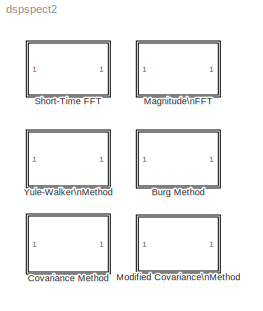
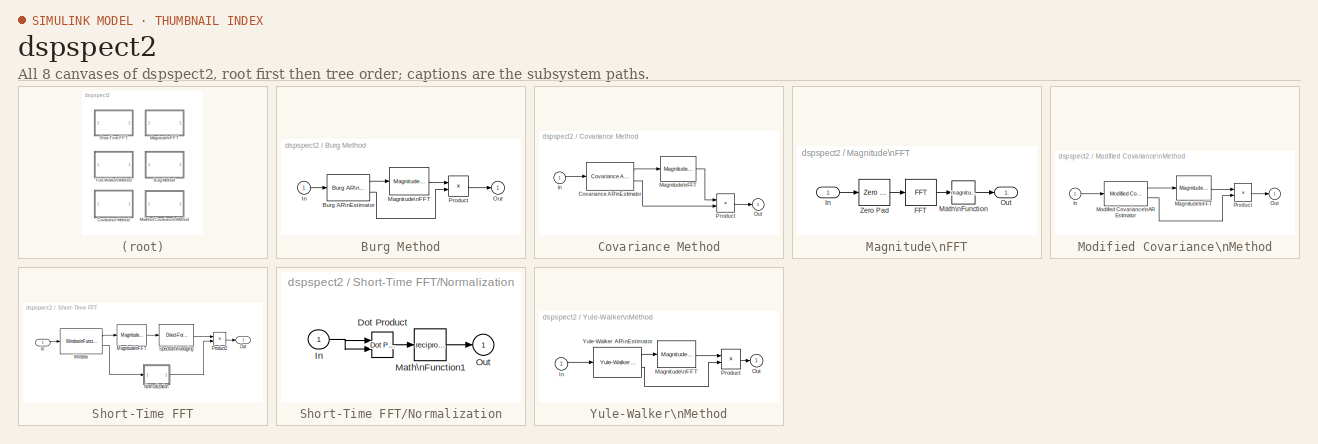
[diagram: thumbnail index - all 8 canvases of the model, root first then tree order]
MODEL dspspect2
KIND library
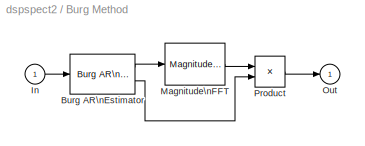
BLOCK [SubSystem] Burg Method
  MaskCallbackString = |
  MaskDescription = Frame-based parametric estimation of the AR spectrum using the Burg Method.
  MaskDisplay = text(-3,1.2,'Burg'); plot(-xe,0,xe,1.3,x,y)
  MaskEnableString = on,on
  MaskHelp = web(dspbhelp);
  MaskIconFrame = on
  MaskIconOpaque = on
  MaskIconRotate = none
  MaskIconUnits = autoscale
  MaskInitialization = d = 0.1; xe=4; x=-xe:d:xe;\ny = ones(size(x)); i=find(x); y(i)=sin(pi*x(i))./(pi*x(i));\ny = abs(y).^(0.75);\n
  MaskPromptString = FFT length (-1 to inherit input width):|Order:
  MaskStyleString = edit,edit
  MaskTunableValueString = off,off
  MaskType = Burg Method
  MaskValueString = 256|6
  MaskVariables = fftsize=@1;ord=@2;
  MaskVisibilityString = on,on
  Ports = [1, 1, 0, 0, 0]
  ShowPortLabels = on
BLOCK [Reference] Burg Method/Burg AR\nEstimator  REF=dspparest2/Burg AR\nEstimator
  Ports = [1, 2, 0, 0, 0]
  SourceBlock = dspparest2/Burg AR\nEstimator
  SourceType = Burg AR Estimator
  fcn = A
  ord = ord
BLOCK [Inport] Burg Method/In
  DataType = auto
  Interpolate = on
  Port = 1
  PortWidth = -1
  SampleTime = -1
  SignalType = auto
BLOCK [Reference] Burg Method/Magnitude\nFFT  REF=dspspect2/Magnitude\nFFT
  NChans = 1
  Ports = [1, 1, 0, 0, 0]
  SourceBlock = dspspect2/Magnitude\nFFT
  SourceType = Magnitude FFT
  fftsize = fftsize
BLOCK [Outport] Burg Method/Out
  InitialOutput = 0
  OutputWhenDisabled = held
  Port = 1
BLOCK [Product] Burg Method/Product
  Inputs = /*
  Ports = [2, 1, 0, 0, 0]
  SaturateOnIntegerOverflow = on
BLOCK [SubSystem] Covariance Method
  MaskCallbackString = ||
  MaskDescription = Frame-based parametric estimation of the AR spectrum using the Covariance Method.
  MaskDisplay = text(-3,1.2,'Cov AR'); plot(-xe,0,xe,1.3,x,y)
  MaskEnableString = on,on,on
  MaskHelp = web(dspbhelp);
  MaskIconFrame = on
  MaskIconOpaque = on
  MaskIconRotate = none
  MaskIconUnits = autoscale
  MaskInitialization = d = 0.1; xe=4; x=-xe:d:xe;\ny = ones(size(x)); i=find(x); y(i)=sin(pi*x(i))./(pi*x(i));\ny = abs(y).^(0.75);\n
  MaskPromptString = Input frame size:|FFT length (-1 to inherit input width):|Order:
  MaskStyleString = edit,edit,edit
  MaskTunableValueString = off,off,off
  MaskType = Covariance Method
  MaskValueString = 128|256|6
  MaskVariables = bufsiz=@1;fftsize=@2;ord=@3;
  MaskVisibilityString = on,on,on
  Ports = [1, 1, 0, 0, 0]
  ShowPortLabels = on
BLOCK [Reference] Covariance Method/Covariance AR\nEstimator  REF=dspparest2/Covariance AR\nEstimator
  Ports = [1, 2, 0, 0, 0]
  SourceBlock = dspparest2/Covariance AR\nEstimator
  SourceType = Covariance AR Estimator
  bufsiz = bufsiz
  ord = ord
BLOCK [Inport] Covariance Method/In
  DataType = auto
  Interpolate = on
  Port = 1
  PortWidth = -1
  SampleTime = -1
  SignalType = auto
BLOCK [Reference] Covariance Method/Magnitude\nFFT  REF=dspspect2/Magnitude\nFFT
  NChans = 1
  Ports = [1, 1, 0, 0, 0]
  SourceBlock = dspspect2/Magnitude\nFFT
  SourceType = Magnitude FFT
  fftsize = fftsize
BLOCK [Outport] Covariance Method/Out
  InitialOutput = 0
  OutputWhenDisabled = held
  Port = 1
BLOCK [Product] Covariance Method/Product
  Inputs = /*
  Ports = [2, 1, 0, 0, 0]
  SaturateOnIntegerOverflow = on
BLOCK [SubSystem] Magnitude\nFFT
  MaskCallbackString = |
  MaskDescription = Compute magnitude-squared FFT of input frame, with optional zero padding.
  MaskDisplay = disp('|FFT| ^ 2')
  MaskEnableString = on,on
  MaskHelp = web(dspbhelp);
  MaskIconFrame = on
  MaskIconOpaque = on
  MaskIconRotate = none
  MaskIconUnits = autoscale
  MaskPromptString = FFT length (-1 to inherit input width):|Number of channels:
  MaskStyleString = edit,edit
  MaskTunableValueString = off,off
  MaskType = Magnitude FFT
  MaskValueString = 128|1
  MaskVariables = fftsize=@1;NChans=@2;
  MaskVisibilityString = on,on
  Ports = [1, 1, 0, 0, 0]
  ShowPortLabels = on
BLOCK [Reference] Magnitude\nFFT/FFT  REF=dspxfrm2/FFT
  Ports = [1, 1, 0, 0, 0]
  SourceBlock = dspxfrm2/FFT
  SourceType = FFT
  nchans = NChans
BLOCK [Inport] Magnitude\nFFT/In
  DataType = auto
  Interpolate = on
  Port = 1
  PortWidth = -1
  SampleTime = -1
  SignalType = auto
BLOCK [Math] Magnitude\nFFT/Math\nFunction
  Operator = magnitude^2
  OutputSignalType = auto
  Ports = [1, 1, 0, 0, 0]
BLOCK [Outport] Magnitude\nFFT/Out
  InitialOutput = []
  OutputWhenDisabled = held
  Port = 1
BLOCK [Reference] Magnitude\nFFT/Zero Pad  REF=dspbdsp2/Zero Pad
  Ports = [1, 1, 0, 0, 0]
  SourceBlock = dspbdsp2/Zero Pad
  SourceType = Zero Pad
  nchans = NChans
  pad = fftsize
  trunc = on
BLOCK [SubSystem] Modified Covariance\nMethod
  MaskCallbackString = ||
  MaskDescription = Frame-based parametric estimation of the AR spectrum using the Modified Covariance Method.
  MaskDisplay = text(-3,1.2,'MCov AR'); plot(-xe,0,xe,1.3,x,y)
  MaskEnableString = on,on,on
  MaskHelp = web(dspbhelp);
  MaskIconFrame = on
  MaskIconOpaque = on
  MaskIconRotate = none
  MaskIconUnits = autoscale
  MaskInitialization = d = 0.1; xe=4; x=-xe:d:xe;\ny = ones(size(x)); i=find(x); y(i)=sin(pi*x(i))./(pi*x(i));\ny = abs(y).^(0.75);\n
  MaskPromptString = Input frame size:|FFT length (-1 to inherit input width):|Order:
  MaskStyleString = edit,edit,edit
  MaskTunableValueString = off,off,off
  MaskType = Modified Covariance Method
  MaskValueString = 128|256|6
  MaskVariables = bufsiz=@1;fftsize=@2;ord=@3;
  MaskVisibilityString = on,on,on
  Ports = [1, 1, 0, 0, 0]
  ShowPortLabels = on
BLOCK [Inport] Modified Covariance\nMethod/In
  DataType = auto
  Interpolate = on
  Port = 1
  PortWidth = -1
  SampleTime = -1
  SignalType = auto
BLOCK [Reference] Modified Covariance\nMethod/Magnitude\nFFT  REF=dspspect2/Magnitude\nFFT
  NChans = 1
  Ports = [1, 1, 0, 0, 0]
  SourceBlock = dspspect2/Magnitude\nFFT
  SourceType = Magnitude FFT
  fftsize = fftsize
BLOCK [Reference] Modified Covariance\nMethod/Modified Covariance\nAR Estimator  REF=dspparest2/Modified Covariance\nAR Estimator
  Ports = [1, 2, 0, 0, 0]
  SourceBlock = dspparest2/Modified Covariance\nAR Estimator
  SourceType = Modified Covariance AR Estimator
  bufsiz = bufsiz
  ord = ord
BLOCK [Outport] Modified Covariance\nMethod/Out
  InitialOutput = 0
  OutputWhenDisabled = held
  Port = 1
BLOCK [Product] Modified Covariance\nMethod/Product
  Inputs = /*
  Ports = [2, 1, 0, 0, 0]
  SaturateOnIntegerOverflow = on
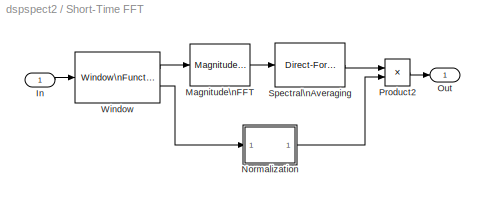
BLOCK [SubSystem] Short-Time FFT
  MaskCallbackString = ||dspblkperiodogram||||
  MaskDescription = Frame-based nonparametric spectral estimation using the short-time FFT.
  MaskDisplay = text(-3,1.15,'ST-FFT'); plot(-xe,0,xe,1.3,x,y)\n
  MaskEnableString = on,on,on,off,off,on,on
  MaskHelp = web(dspbhelp);
  MaskIconFrame = on
  MaskIconOpaque = on
  MaskIconRotate = none
  MaskIconUnits = autoscale
  MaskInitialization = [x,y,xe]=dspblkperiodogram('icon');\n
  MaskPromptString = FFT length (-1 to inherit input width):|Number of spectral averages:|Window type:|Stopband attenuation in dB:|Beta:|Window sampling:|Number of channels:
  MaskSelfModifiable = on
  MaskStyleString = edit,edit,popup(Bartlett|Blackman|Boxcar|Chebyshev|Hamming|Hann|Hanning|Kaiser|Triang),edit,edit,popup(Symmetric|Periodic),edit
  MaskTunableValueString = off,off,on,on,on,on,off
  MaskType = Short-Time FFT
  MaskValueString = 256|4|Hamming|50|5|Symmetric|1
  MaskVariables = fftsize=@1;navg=@2;wintype=@3;Rs=@4;beta=@5;winsamp=@6;NChans=@7;
  MaskVisibilityString = on,on,on,on,on,on,on
  Ports = [1, 1, 0, 0, 0]
  ShowPortLabels = on
BLOCK [Inport] Short-Time FFT/In
  DataType = auto
  Interpolate = on
  Port = 1
  PortWidth = -1
  SampleTime = -1
  SignalType = auto
BLOCK [Reference] Short-Time FFT/Magnitude\nFFT  REF=dspspect2/Magnitude\nFFT
  NChans = NChans
  Ports = [1, 1, 0, 0, 0]
  SourceBlock = dspspect2/Magnitude\nFFT
  SourceType = Magnitude FFT
  fftsize = fftsize
BLOCK [SubSystem] Short-Time FFT/Normalization
  Ports = [1, 1, 0, 0, 0]
  ShowPortLabels = on
BLOCK [Reference] Short-Time FFT/Normalization/Dot Product  REF=simulink/Linear/Dot Product
  Ports = [2, 1, 0, 0, 0]
  SourceBlock = simulink/Linear/Dot Product
  SourceType = Dot Product
BLOCK [Inport] Short-Time FFT/Normalization/In
  DataType = auto
  Interpolate = on
  Port = 1
  PortWidth = -1
  SampleTime = -1
  SignalType = auto
BLOCK [Math] Short-Time FFT/Normalization/Math\nFunction1
  Operator = reciprocal
  OutputSignalType = auto
  Ports = [1, 1, 0, 0, 0]
BLOCK [Outport] Short-Time FFT/Normalization/Out
  InitialOutput = []
  OutputWhenDisabled = held
  Port = 1
BLOCK [Outport] Short-Time FFT/Out
  InitialOutput = 0
  OutputWhenDisabled = held
  Port = 1
BLOCK [Product] Short-Time FFT/Product2
  Inputs = **
  Ports = [2, 1, 0, 0, 0]
  SaturateOnIntegerOverflow = on
BLOCK [Reference] Short-Time FFT/Spectral\nAveraging  REF=dsparch2/Direct-Form II\nTranspose Filter
  Ports = [1, 1, 0, 0, 0]
  SourceBlock = dsparch2/Direct-Form II\nTranspose Filter
  SourceType = Direct-Form II Transpose Filter
  den = 1
  frame = off
  ic = 0
  num = ones(navg,1)/navg
  numCHANS = 1
BLOCK [Reference] Short-Time FFT/Window  REF=dspbdsp2/Window\nFunction
  N = 64
  NChans = NChans
  Ports = [1, 2, 0, 0, 0]
  Rs = Rs
  SourceBlock = dspbdsp2/Window\nFunction
  SourceType = Window Function
  beta = beta
  winmode = Generate and apply window
  winsamp = Symmetric
  wintype = Hamming
BLOCK [SubSystem] Yule-Walker\nMethod
  MaskCallbackString = |
  MaskDescription = Frame-based parametric estimation of the AR spectrum using the autocorrelation (LPC) method.
  MaskDisplay = text(-3,1.2,'Yule AR'); plot(-xe,0,xe,1.3,x,y)
  MaskEnableString = on,on
  MaskHelp = web(dspbhelp);
  MaskIconFrame = on
  MaskIconOpaque = on
  MaskIconRotate = none
  MaskIconUnits = autoscale
  MaskInitialization = d = 0.1; xe=4; x=-xe:d:xe;\ny = ones(size(x)); i=find(x); y(i)=sin(pi*x(i))./(pi*x(i));\ny = abs(y).^(0.75);\n
  MaskPromptString = FFT length (-1 to inherit input width):|Order:
  MaskStyleString = edit,edit
  MaskTunableValueString = off,off
  MaskType = Yule-Walker Method
  MaskValueString = 256|6
  MaskVariables = fftsize=@1;ord=@2;
  MaskVisibilityString = on,on
  Ports = [1, 1, 0, 0, 0]
  ShowPortLabels = on
BLOCK [Inport] Yule-Walker\nMethod/In
  DataType = auto
  Interpolate = on
  Port = 1
  PortWidth = -1
  SampleTime = -1
  SignalType = auto
BLOCK [Reference] Yule-Walker\nMethod/Magnitude\nFFT  REF=dspspect2/Magnitude\nFFT
  NChans = 1
  Ports = [1, 1, 0, 0, 0]
  SourceBlock = dspspect2/Magnitude\nFFT
  SourceType = Magnitude FFT
  fftsize = fftsize
BLOCK [Outport] Yule-Walker\nMethod/Out
  InitialOutput = 0
  OutputWhenDisabled = held
  Port = 1
BLOCK [Product] Yule-Walker\nMethod/Product
  Inputs = /*
  Ports = [2, 1, 0, 0, 0]
  SaturateOnIntegerOverflow = on
BLOCK [Reference] Yule-Walker\nMethod/Yule-Walker AR\nEstimator  REF=dspparest2/Yule-Walker AR\nEstimator
  Ports = [1, 2, 0, 0, 0]
  SourceBlock = dspparest2/Yule-Walker AR\nEstimator
  SourceType = Linear Prediction
  ord = ord
LINE Burg Method/Burg AR\nEstimator:1 -> Burg Method/Magnitude\nFFT:1
LINE Burg Method/Burg AR\nEstimator:2 -> Burg Method/Product:2
LINE Burg Method/In:1 -> Burg Method/Burg AR\nEstimator:1
LINE Burg Method/Magnitude\nFFT:1 -> Burg Method/Product:1
LINE Burg Method/Product:1 -> Burg Method/Out:1
LINE Covariance Method/Covariance AR\nEstimator:1 -> Covariance Method/Magnitude\nFFT:1
LINE Covariance Method/Covariance AR\nEstimator:2 -> Covariance Method/Product:2
LINE Covariance Method/In:1 -> Covariance Method/Covariance AR\nEstimator:1
LINE Covariance Method/Magnitude\nFFT:1 -> Covariance Method/Product:1
LINE Covariance Method/Product:1 -> Covariance Method/Out:1
LINE Magnitude\nFFT/FFT:1 -> Magnitude\nFFT/Math\nFunction:1
LINE Magnitude\nFFT/In:1 -> Magnitude\nFFT/Zero Pad:1
LINE Magnitude\nFFT/Math\nFunction:1 -> Magnitude\nFFT/Out:1
LINE Magnitude\nFFT/Zero Pad:1 -> Magnitude\nFFT/FFT:1
LINE Modified Covariance\nMethod/In:1 -> Modified Covariance\nMethod/Modified Covariance\nAR Estimator:1
LINE Modified Covariance\nMethod/Magnitude\nFFT:1 -> Modified Covariance\nMethod/Product:1
LINE Modified Covariance\nMethod/Modified Covariance\nAR Estimator:1 -> Modified Covariance\nMethod/Magnitude\nFFT:1
LINE Modified Covariance\nMethod/Modified Covariance\nAR Estimator:2 -> Modified Covariance\nMethod/Product:2
LINE Modified Covariance\nMethod/Product:1 -> Modified Covariance\nMethod/Out:1
LINE Short-Time FFT/In:1 -> Short-Time FFT/Window:1
LINE Short-Time FFT/Magnitude\nFFT:1 -> Short-Time FFT/Spectral\nAveraging:1
LINE Short-Time FFT/Normalization/Dot Product:1 -> Short-Time FFT/Normalization/Math\nFunction1:1
NET Short-Time FFT/Normalization/In:1 -> Short-Time FFT/Normalization/Dot Product:1, Short-Time FFT/Normalization/Dot Product:2
LINE Short-Time FFT/Normalization/Math\nFunction1:1 -> Short-Time FFT/Normalization/Out:1
LINE Short-Time FFT/Normalization:1 -> Short-Time FFT/Product2:2
LINE Short-Time FFT/Product2:1 -> Short-Time FFT/Out:1
LINE Short-Time FFT/Spectral\nAveraging:1 -> Short-Time FFT/Product2:1
LINE Short-Time FFT/Window:1 -> Short-Time FFT/Magnitude\nFFT:1
LINE Short-Time FFT/Window:2 -> Short-Time FFT/Normalization:1
LINE Yule-Walker\nMethod/In:1 -> Yule-Walker\nMethod/Yule-Walker AR\nEstimator:1
LINE Yule-Walker\nMethod/Magnitude\nFFT:1 -> Yule-Walker\nMethod/Product:1
LINE Yule-Walker\nMethod/Product:1 -> Yule-Walker\nMethod/Out:1
LINE Yule-Walker\nMethod/Yule-Walker AR\nEstimator:1 -> Yule-Walker\nMethod/Magnitude\nFFT:1
LINE Yule-Walker\nMethod/Yule-Walker AR\nEstimator:2 -> Yule-Walker\nMethod/Product:2
note: NET lines group one-source signal fan-out (src -> all destinations, sorted); 1:1 wires keep LINE
